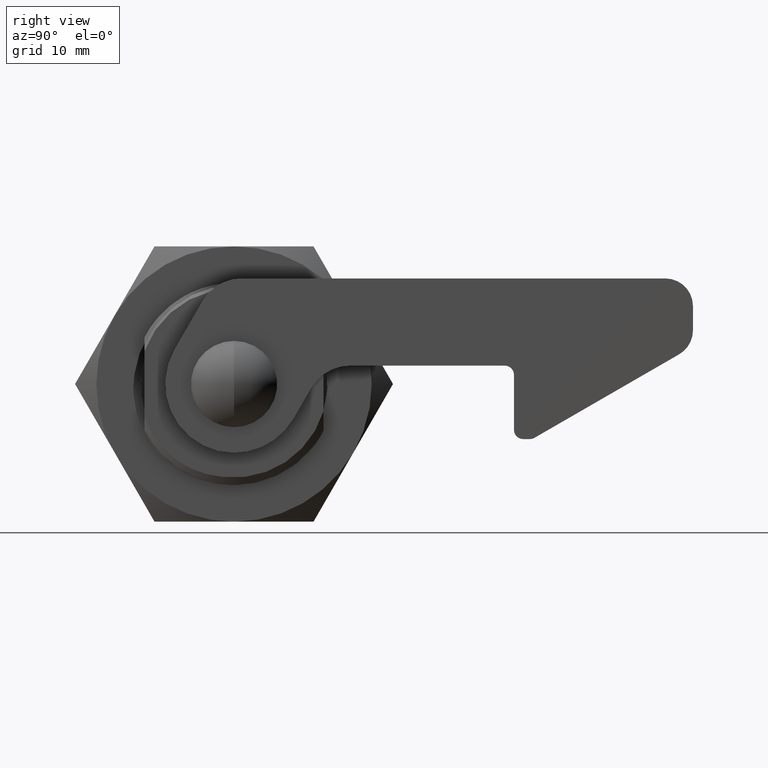
[diagram: clean part render]
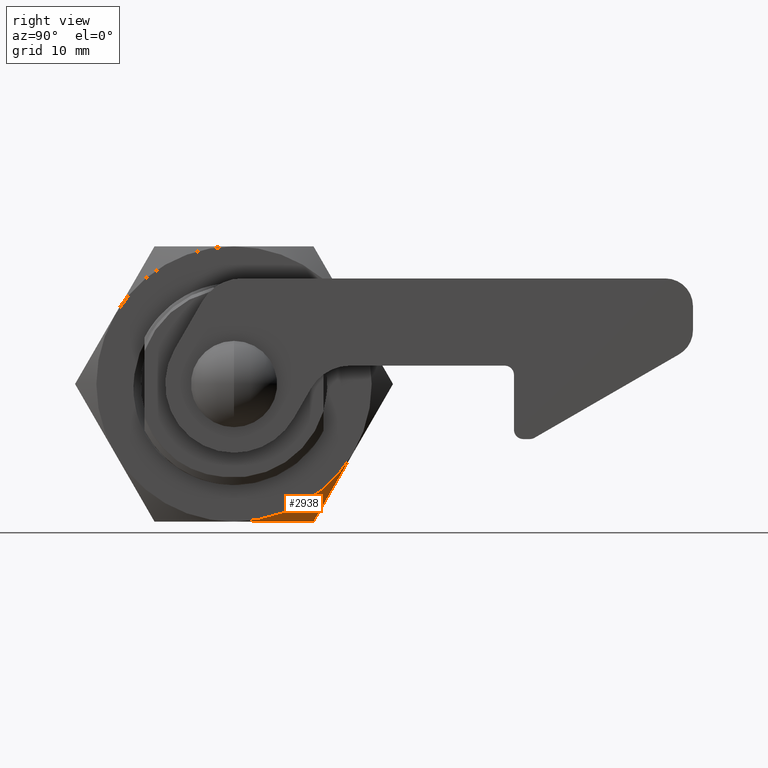
[diagram: same view with one face highlighted and labeled with its STEP entity id]
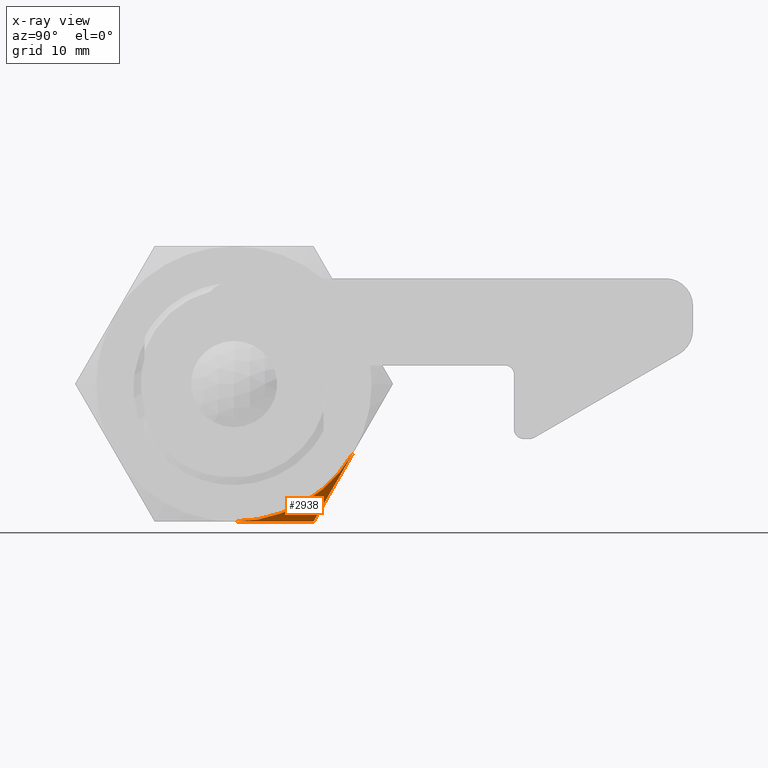
[diagram: x-ray of the same camera — body ghosted, the highlighted face saturated]
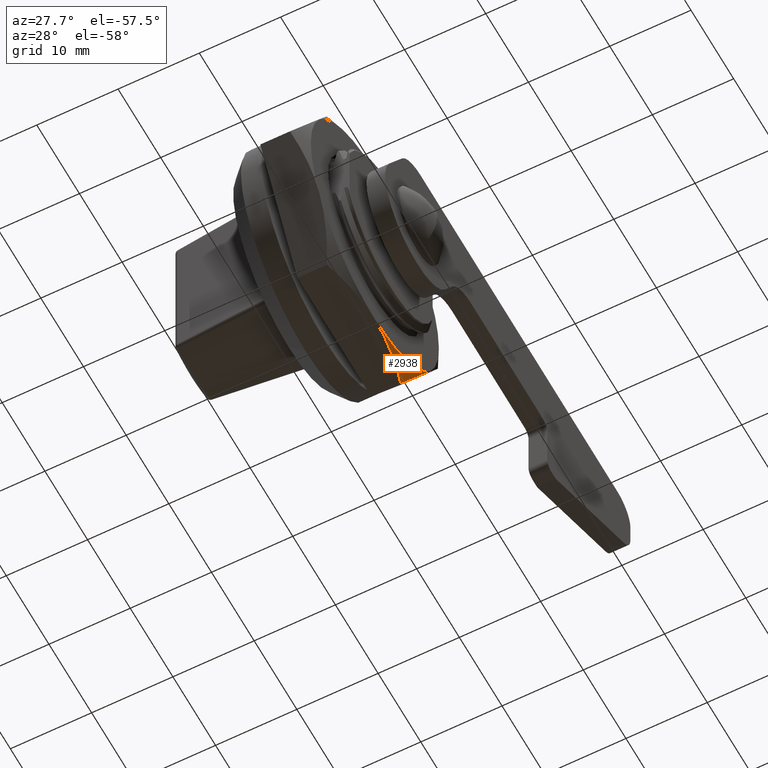
[diagram: same view with one face highlighted and labeled with its STEP entity id]
A machine part, right view. The second image highlights one B-rep face of the part: STEP entity #2938.
The next image is the same camera in x-ray: the body ghosted, the highlighted face saturated — about 0% of this face is hidden behind the body in this view.
A second angle (auxiliary view) of the same face is appended — the face is thin or edge-on in the first view.
In plain terms, the highlighted conical surface has half-angle 60 deg.
Its self-contained STEP definition (entity closure, byte-faithful):
#27 = CARTESIAN_POINT ( 'NONE',  ( 10.07931531348125800, -4.404967269171107700, -12.54211377154391200 ) ) ;
#688 = AXIS2_PLACEMENT_3D ( 'NONE', #12307, #23278, #8039 ) ;
#2083 = EDGE_CURVE ( 'NONE', #25735, #10738, #11023, .T. ) ;
#2115 = CARTESIAN_POINT ( 'NONE',  ( 12.99038105663201900, -5.000000000000000000, -7.499999999922209800 ) ) ;
#2201 = CARTESIAN_POINT ( 'NONE',  ( 8.660254037844451200, -3.660254037754500100, -15.00000000000000000 ) ) ;
#2497 = CARTESIAN_POINT ( 'NONE',  ( 7.259939241380133800, -4.064490100099038500, -14.99999999999999800 ) ) ;
#2938 = ADVANCED_FACE ( 'NONE', ( #12592 ), #6157, .T. ) ;
#4811 = EDGE_CURVE ( 'NONE', #10738, #24861, #27871, .T. ) ;
#6157 = CONICAL_SURFACE ( 'NONE', #688, 14.99999999984460100, 1.047197551196571000 ) ;
#6824 = CARTESIAN_POINT ( 'NONE',  ( 3.671711945063535200, -4.753331188742416600, -15.00000000000000000 ) ) ;
#8039 = DIRECTION ( 'NONE',  ( 0.0000000000000000000, 0.0000000000000000000, 1.000000000000000000 ) ) ;
#8990 = CARTESIAN_POINT ( 'NONE',  ( 1.466655175411833500, -4.968885740584891400, -15.00000000000000000 ) ) ;
#9248 = EDGE_LOOP ( 'NONE', ( #20851, #17360, #19067 ) ) ;
#10450 = CIRCLE ( 'NONE', #22012, 14.99999999984458100 ) ;
#10738 = VERTEX_POINT ( 'NONE', #14332 ) ;
#10789 = CARTESIAN_POINT ( 'NONE',  ( 12.25376565673024300, -4.968333449719094300, -8.775855298501063800 ) ) ;
#10988 = CARTESIAN_POINT ( 'NONE',  ( 0.0000000000000000000, -5.000000000000000000, 0.0000000000000000000 ) ) ;
#11023 = B_SPLINE_CURVE_WITH_KNOTS ( 'NONE', 3,
 ( #2115, #23756, #10789, #25929, #12966, #27, #15133, #2201 ),
 .UNSPECIFIED., .F., .F.,
 ( 4, 2, 2, 4 ),
 ( 0.008762996616086257000, 0.01094549440788696000, 0.01312799219968766500, 0.01749298778328907400 ),
 .UNSPECIFIED. ) ;
#11171 = CARTESIAN_POINT ( 'NONE',  ( 0.0000000000000000000, -5.000000000000000000, -14.99999999984460100 ) ) ;
#12307 = CARTESIAN_POINT ( 'NONE',  ( 0.0000000000000000000, -5.000000000000000000, 0.0000000000000000000 ) ) ;
#12592 = FACE_OUTER_BOUND ( 'NONE', #9248, .T. ) ;
#12966 = CARTESIAN_POINT ( 'NONE',  ( 11.16087755869073600, -4.755025642542049600, -10.66879301129281500 ) ) ;
#13171 = DIRECTION ( 'NONE',  ( 0.0000000000000000000, 0.0000000000000000000, 1.000000000000000000 ) ) ;
#14332 = CARTESIAN_POINT ( 'NONE',  ( 8.660254037844451200, -3.660254037754500100, -15.00000000000000000 ) ) ;
#15133 = CARTESIAN_POINT ( 'NONE',  ( 9.366837123764181400, -4.068199972615120800, -13.77616219541858400 ) ) ;
#17360 = ORIENTED_EDGE ( 'NONE', *, *, #4811, .F. ) ;
#17590 = CARTESIAN_POINT ( 'NONE',  ( 8.660254037844451200, -3.660254037754500100, -15.00000000000000000 ) ) ;
#18686 = EDGE_CURVE ( 'NONE', #24861, #25735, #10450, .T. ) ;
#19067 = ORIENTED_EDGE ( 'NONE', *, *, #2083, .F. ) ;
#19629 = CARTESIAN_POINT ( 'NONE',  ( 0.0000000000000000000, -5.000000000000000000, -14.99999999984460100 ) ) ;
#19763 = CARTESIAN_POINT ( 'NONE',  ( 5.841256279252879000, -4.401137878550641400, -14.99999999999999800 ) ) ;
#20583 = CARTESIAN_POINT ( 'NONE',  ( 12.99038105663201900, -5.000000000000000000, -7.499999999922209800 ) ) ;
#20851 = ORIENTED_EDGE ( 'NONE', *, *, #18686, .F. ) ;
#21946 = CARTESIAN_POINT ( 'NONE',  ( 2.940285371425623900, -4.845231835230137600, -15.00000000000000200 ) ) ;
#22012 = AXIS2_PLACEMENT_3D ( 'NONE', #10988, #26132, #13171 ) ;
#23278 = DIRECTION ( 'NONE',  ( 0.0000000000000000000, 1.000000000000000000, 0.0000000000000000000 ) ) ;
#23756 = CARTESIAN_POINT ( 'NONE',  ( 12.62289781509267400, -4.999999999909797500, -8.136499645509765300 ) ) ;
#24151 = CARTESIAN_POINT ( 'NONE',  ( 0.7321549951539499900, -4.999999999910091500, -15.00000000000000200 ) ) ;
#24861 = VERTEX_POINT ( 'NONE', #19629 ) ;
#25735 = VERTEX_POINT ( 'NONE', #20583 ) ;
#25929 = CARTESIAN_POINT ( 'NONE',  ( 11.52354539963285700, -4.845787350994304400, -10.04063388450974500 ) ) ;
#26132 = DIRECTION ( 'NONE',  ( -0.0000000000000000000, -1.000000000000000000, -0.0000000000000000000 ) ) ;
#27871 = B_SPLINE_CURVE_WITH_KNOTS ( 'NONE', 3,
 ( #17590, #2497, #19763, #6824, #21946, #8990, #24151, #11171 ),
 .UNSPECIFIED., .F., .F.,
 ( 4, 2, 2, 4 ),
 ( 0.006348191940059260900, 0.01072013610832305000, 0.01290610819245494400, 0.01509208027658683900 ),
 .UNSPECIFIED. ) ;